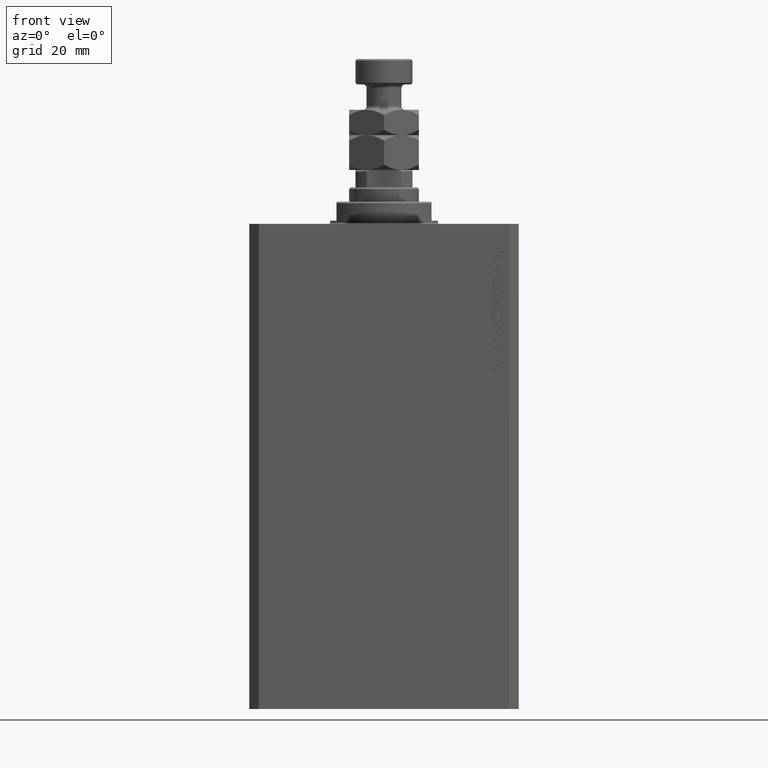
[diagram: clean part render]
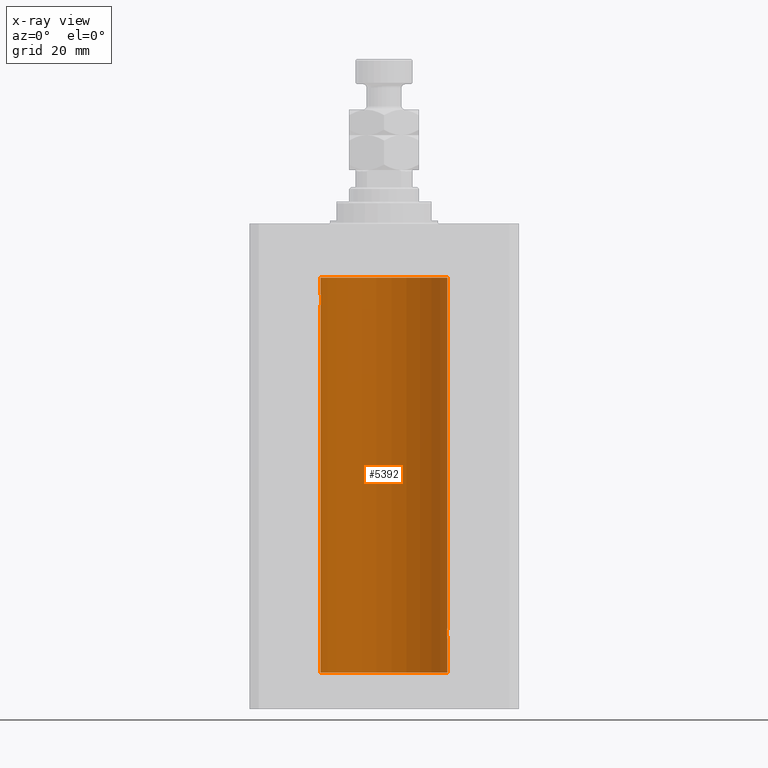
[diagram: x-ray — body ghosted, one internal face saturated and labeled with its STEP entity id]
A machine part, front view, then the same camera in x-ray: the body is ghosted and one INTERNAL B-rep face — a face not visible from any outside direction — is saturated and labeled: STEP entity #5392.
In plain terms, the highlighted cylindrical surface (partial cylindrical patch) has radius 20 mm, axis along (0, 0, 1).
Its self-contained STEP definition (entity closure, byte-faithful):
#587 = DIRECTION ( 'NONE',  ( 1.000000000000000000, 0.000000000000000000, 0.000000000000000000 ) ) ;
#715 = DIRECTION ( 'NONE',  ( -0.000000000000000000, -0.000000000000000000, 1.000000000000000000 ) ) ;
#732 = CARTESIAN_POINT ( 'NONE',  ( -19.90978941500366872, 1.898109641280506521, -24.64371130639850804 ) ) ;
#946 = EDGE_CURVE ( 'NONE', #2558, #45193, #37895, .T. ) ;
#1193 = CARTESIAN_POINT ( 'NONE',  ( -19.94330239452387232, 1.507796451871729504, -25.32060165083834136 ) ) ;
#1369 = EDGE_CURVE ( 'NONE', #14040, #21092, #17771, .T. ) ;
#1472 = CARTESIAN_POINT ( 'NONE',  ( 20.00000000000000000, 0.000000000000000000, -17.00000000000000000 ) ) ;
#1886 = CARTESIAN_POINT ( 'NONE',  ( 19.99867993937906974, 0.2631387813862820502, -127.0130809500309113 ) ) ;
#1988 = CARTESIAN_POINT ( 'NONE',  ( 19.98066923111604964, 0.8874387315505276597, -130.7971214522023899 ) ) ;
#2111 = CARTESIAN_POINT ( 'NONE',  ( 20.00000000000000000, -1.553109350199128042E-23, -127.0000000000000000 ) ) ;
#2442 = CARTESIAN_POINT ( 'NONE',  ( 20.00000000000000000, 3.320656427414327395E-15, -131.0000000000000000 ) ) ;
#2558 = VERTEX_POINT ( 'NONE', #25260 ) ;
#2675 = CARTESIAN_POINT ( 'NONE',  ( 19.89974874213235623, 2.000000000000336176, -129.2611413215582559 ) ) ;
#2776 = CARTESIAN_POINT ( 'NONE',  ( -20.00000000000000000, 2.449293598294706513E-15, -141.5999999999999943 ) ) ;
#3194 = CIRCLE ( 'NONE', #8437, 20.00000000000000000 ) ;
#4113 = AXIS2_PLACEMENT_3D ( 'NONE', #24889, #43577, #21378 ) ;
#4255 = CARTESIAN_POINT ( 'NONE',  ( -19.99999999999999645, 0.1322335637814733289, -21.99999999999999645 ) ) ;
#4405 = LINE ( 'NONE', #32701, #7826 ) ;
#4476 = CARTESIAN_POINT ( 'NONE',  ( -19.90610216711450420, 1.935912154109700190, -24.51899474186111050 ) ) ;
#4562 = DIRECTION ( 'NONE',  ( 0.000000000000000000, 0.000000000000000000, 1.000000000000000000 ) ) ;
#4938 = CARTESIAN_POINT ( 'NONE',  ( -19.89974399317116394, 2.000047251570890250, -24.12981181290706445 ) ) ;
#5376 = ORIENTED_EDGE ( 'NONE', *, *, #5695, .T. ) ;
#5392 = ADVANCED_FACE ( 'NONE', ( #14363 ), #29318, .F. ) ;
#5407 = CARTESIAN_POINT ( 'NONE',  ( 19.90980722176544759, 1.897923463361385954, -128.3557453536680555 ) ) ;
#5573 = CARTESIAN_POINT ( 'NONE',  ( -20.00000000000000000, 2.449293598294706513E-15, -17.00000000000000000 ) ) ;
#5641 = CARTESIAN_POINT ( 'NONE',  ( 19.90611763847109117, 1.935753518394738526, -128.4804224343485259 ) ) ;
#5695 = EDGE_CURVE ( 'NONE', #14502, #14066, #4405, .T. ) ;
#6835 = VECTOR ( 'NONE', #715, 1000.000000000000000 ) ;
#6882 = CIRCLE ( 'NONE', #38982, 20.00000000000000000 ) ;
#6925 = ORIENTED_EDGE ( 'NONE', *, *, #26897, .F. ) ;
#7013 = ORIENTED_EDGE ( 'NONE', *, *, #1369, .T. ) ;
#7826 = VECTOR ( 'NONE', #40404, 1000.000000000000000 ) ;
#8437 = AXIS2_PLACEMENT_3D ( 'NONE', #23496, #37748, #27000 ) ;
#9085 = EDGE_CURVE ( 'NONE', #14066, #33893, #6882, .T. ) ;
#9699 = CARTESIAN_POINT ( 'NONE',  ( 19.92371056170336274, 1.748080295468904755, -130.0060386593724786 ) ) ;
#9922 = CARTESIAN_POINT ( 'NONE',  ( 19.99868904672146996, 0.2623009746877889015, -130.9870089850981287 ) ) ;
#9967 = LINE ( 'NONE', #31026, #37603 ) ;
#10158 = CARTESIAN_POINT ( 'NONE',  ( 19.97516523393782606, 1.002309963754522304, -130.7356447155610795 ) ) ;
#10233 = CARTESIAN_POINT ( 'NONE',  ( 19.97511131722831479, 1.003336743019917598, -127.2649856517438991 ) ) ;
#11725 = CARTESIAN_POINT ( 'NONE',  ( -19.98070694681040038, 0.8865903856744316025, -25.79753901127162763 ) ) ;
#11892 = CARTESIAN_POINT ( 'NONE',  ( 19.89974874213236333, 2.000000000000336620, -129.0000000000000000 ) ) ;
#11941 = CARTESIAN_POINT ( 'NONE',  ( -19.91909332229799290, 1.797847595792767317, -24.88596189455837759 ) ) ;
#12165 = CARTESIAN_POINT ( 'NONE',  ( -19.93679350243183990, 1.590453176650918676, -25.21960275349743696 ) ) ;
#12418 = CARTESIAN_POINT ( 'NONE',  ( 19.94332236886613074, 1.507531922383783307, -127.6790994990407455 ) ) ;
#12647 = CARTESIAN_POINT ( 'NONE',  ( 19.92473605353365684, 1.734984354167250942, -127.9966090588858805 ) ) ;
#12885 = ORIENTED_EDGE ( 'NONE', *, *, #9085, .T. ) ;
#14040 = VERTEX_POINT ( 'NONE', #22998 ) ;
#14066 = VERTEX_POINT ( 'NONE', #1472 ) ;
#14363 = FACE_OUTER_BOUND ( 'NONE', #44334, .T. ) ;
#14502 = VERTEX_POINT ( 'NONE', #2111 ) ;
#15973 = CARTESIAN_POINT ( 'NONE',  ( -20.00000000000000000, 2.449293598294706513E-15, -141.5999999999999943 ) ) ;
#16144 = ORIENTED_EDGE ( 'NONE', *, *, #36285, .T. ) ;
#16272 = CARTESIAN_POINT ( 'NONE',  ( 19.90520750556430229, 1.947496194184496376, -129.5245541699345040 ) ) ;
#16502 = CARTESIAN_POINT ( 'NONE',  ( 20.00000000000000000, 0.1322642052205942331, -131.0000000000000284 ) ) ;
#17771 = B_SPLINE_CURVE_WITH_KNOTS ( 'NONE', 3,
 ( #22264, #4255, #25776, #29955, #26222, #22713, #36510, #40476, #44212, #43762, #40026, #29276, #36287, #4938, #39786, #4476, #732, #11941, #43299, #12165, #1193, #22942, #26453, #18748, #11725, #18977, #29042, #29731, #40251, #37196 ),
 .UNSPECIFIED., .F., .F.,
 ( 4, 2, 2, 2, 2, 2, 2, 2, 2, 2, 2, 2, 2, 2, 4 ),
 ( 1.233811249882840126E-19, 0.0003910512220831129202, 0.0007821024441662257319, 0.001173153666249338381, 0.001564204888332450813, 0.002346307332498675461, 0.003128409776664900326, 0.003519460998748018179, 0.003910512220831135165, 0.004301563442914253452, 0.004692614664997370871, 0.005083665887080488291, 0.005474717109163606578, 0.005865768331246723997, 0.006256819553329842284 ),
 .UNSPECIFIED. ) ;
#17903 = CARTESIAN_POINT ( 'NONE',  ( 0.000000000000000000, 0.000000000000000000, -17.00000000000000000 ) ) ;
#18748 = CARTESIAN_POINT ( 'NONE',  ( -19.97510079925438475, 1.003547732426807171, -25.73489454601984150 ) ) ;
#18977 = CARTESIAN_POINT ( 'NONE',  ( -19.98998539619404013, 0.6443418861413118259, -25.89789687358865322 ) ) ;
#19451 = CARTESIAN_POINT ( 'NONE',  ( 19.89974874213236333, 2.000000000000336620, -129.0000000000000000 ) ) ;
#19681 = CARTESIAN_POINT ( 'NONE',  ( 19.98998987637478209, 0.6441982143731834753, -127.1020565463988277 ) ) ;
#19913 = CARTESIAN_POINT ( 'NONE',  ( 19.95655800881796083, 1.320814917468104310, -127.4923930935969167 ) ) ;
#20103 = LINE ( 'NONE', #2776, #33864 ) ;
#20239 = CARTESIAN_POINT ( 'NONE',  ( 19.95643710845398644, 1.322557776536536611, -130.5059384114668433 ) ) ;
#21092 = VERTEX_POINT ( 'NONE', #42873 ) ;
#21378 = DIRECTION ( 'NONE',  ( 1.000000000000000000, 0.000000000000000000, 0.000000000000000000 ) ) ;
#22016 = LINE ( 'NONE', #36268, #6835 ) ;
#22264 = CARTESIAN_POINT ( 'NONE',  ( -20.00000000000000000, -1.269718202421245235E-16, -22.00000000000000000 ) ) ;
#22562 = EDGE_CURVE ( 'NONE', #45193, #14502, #22965, .T. ) ;
#22713 = CARTESIAN_POINT ( 'NONE',  ( -19.98067755938510714, 0.8872481584516758168, -22.20278656943303375 ) ) ;
#22942 = CARTESIAN_POINT ( 'NONE',  ( -19.95654117037011588, 1.321069663197671273, -25.50738641543989615 ) ) ;
#22952 = CARTESIAN_POINT ( 'NONE',  ( 19.93681418096177538, 1.590194273034195804, -127.7800630082155635 ) ) ;
#22965 = B_SPLINE_CURVE_WITH_KNOTS ( 'NONE', 3,
 ( #19451, #24501, #30660, #5641, #5407, #23419, #12647, #22952, #12418, #19913, #37673, #10233, #44454, #19681, #33932, #1886, #30434, #37206 ),
 .UNSPECIFIED., .F., .F.,
 ( 4, 2, 2, 2, 2, 2, 2, 2, 4 ),
 ( 0.003129134698348759458, 0.003520095305221480463, 0.003911055912094200601, 0.004302016518966922040, 0.004692977125839642612, 0.005083937732712363183, 0.005474898339585083755, 0.005865858946457805194, 0.006256819553330525766 ),
 .UNSPECIFIED. ) ;
#22998 = CARTESIAN_POINT ( 'NONE',  ( -20.00000000000000000, -1.269718202421245235E-16, -22.00000000000000000 ) ) ;
#23419 = CARTESIAN_POINT ( 'NONE',  ( 19.91911433329476822, 1.797615436563599900, -128.1135710607577494 ) ) ;
#23496 = CARTESIAN_POINT ( 'NONE',  ( 0.000000000000000000, 0.000000000000000000, -141.5999999999999943 ) ) ;
#24501 = CARTESIAN_POINT ( 'NONE',  ( 19.89974874213236333, 2.000000000000337064, -128.8694898374175466 ) ) ;
#24889 = CARTESIAN_POINT ( 'NONE',  ( 0.000000000000000000, 0.000000000000000000, -141.5999999999999943 ) ) ;
#25260 = CARTESIAN_POINT ( 'NONE',  ( 20.00000000000000000, 3.320656427414327395E-15, -131.0000000000000000 ) ) ;
#25776 = CARTESIAN_POINT ( 'NONE',  ( -19.99868965376115071, 0.2622407139811102628, -22.01298505384673732 ) ) ;
#26222 = CARTESIAN_POINT ( 'NONE',  ( -19.98996196681220638, 0.6450624715427617506, -22.10234886833925572 ) ) ;
#26453 = CARTESIAN_POINT ( 'NONE',  ( -19.96304379627741454, 1.220099331833899736, -25.59007067689674386 ) ) ;
#26897 = EDGE_CURVE ( 'NONE', #14040, #33893, #22016, .T. ) ;
#27000 = DIRECTION ( 'NONE',  ( 1.000000000000000000, 0.000000000000000000, 0.000000000000000000 ) ) ;
#27122 = DIRECTION ( 'NONE',  ( -0.000000000000000000, -0.000000000000000000, 1.000000000000000000 ) ) ;
#27987 = DIRECTION ( 'NONE',  ( -0.000000000000000000, -0.000000000000000000, 1.000000000000000000 ) ) ;
#29042 = CARTESIAN_POINT ( 'NONE',  ( -19.99365919015135518, 0.5196544277756711683, -25.93573148867292133 ) ) ;
#29276 = CARTESIAN_POINT ( 'NONE',  ( -19.90522393307484705, 1.947330458682957177, -23.47486091545001941 ) ) ;
#29318 = CYLINDRICAL_SURFACE ( 'NONE', #4113, 20.00000000000000000 ) ;
#29731 = CARTESIAN_POINT ( 'NONE',  ( -19.99867931558985745, 0.2631998640366461362, -25.98691292011447374 ) ) ;
#29955 = CARTESIAN_POINT ( 'NONE',  ( -19.99370013622814568, 0.5179893069484621249, -22.06384771616670903 ) ) ;
#30434 = CARTESIAN_POINT ( 'NONE',  ( 20.00000000000000000, 0.1305404422160244271, -126.9999999999999147 ) ) ;
#30660 = CARTESIAN_POINT ( 'NONE',  ( 19.90107458412649066, 1.986930174329753385, -128.7369201394178901 ) ) ;
#30675 = EDGE_CURVE ( 'NONE', #37925, #31942, #3194, .T. ) ;
#30901 = EDGE_CURVE ( 'NONE', #31942, #21092, #20103, .T. ) ;
#30985 = CARTESIAN_POINT ( 'NONE',  ( 19.93682487288204541, 1.599118048130810488, -130.2291703518122574 ) ) ;
#31026 = CARTESIAN_POINT ( 'NONE',  ( 20.00000000000000000, 0.000000000000000000, -141.5999999999999943 ) ) ;
#31853 = ORIENTED_EDGE ( 'NONE', *, *, #30675, .F. ) ;
#31942 = VERTEX_POINT ( 'NONE', #15973 ) ;
#32701 = CARTESIAN_POINT ( 'NONE',  ( 20.00000000000000000, 0.000000000000000000, -141.5999999999999943 ) ) ;
#32895 = CARTESIAN_POINT ( 'NONE',  ( 20.00000000000000000, 0.000000000000000000, -141.5999999999999943 ) ) ;
#33864 = VECTOR ( 'NONE', #27122, 1000.000000000000000 ) ;
#33893 = VERTEX_POINT ( 'NONE', #5573 ) ;
#33932 = CARTESIAN_POINT ( 'NONE',  ( 19.99366205580918532, 0.5195372307044506810, -127.0642390655580556 ) ) ;
#36268 = CARTESIAN_POINT ( 'NONE',  ( -20.00000000000000000, 2.449293598294706513E-15, -141.5999999999999943 ) ) ;
#36285 = EDGE_CURVE ( 'NONE', #37925, #2558, #9967, .T. ) ;
#36287 = CARTESIAN_POINT ( 'NONE',  ( -19.89975827978156175, 1.999905101582726719, -23.73819846102561115 ) ) ;
#36510 = CARTESIAN_POINT ( 'NONE',  ( -19.97517568592526160, 1.002099838626314909, -22.26423634872104884 ) ) ;
#37196 = CARTESIAN_POINT ( 'NONE',  ( -20.00000000000000000, 2.449293582768784389E-15, -25.99999999999999645 ) ) ;
#37206 = CARTESIAN_POINT ( 'NONE',  ( 20.00000000000000000, -1.553109350199128042E-23, -127.0000000000000000 ) ) ;
#37603 = VECTOR ( 'NONE', #27987, 1000.000000000000000 ) ;
#37673 = CARTESIAN_POINT ( 'NONE',  ( 19.96305842179987877, 1.219858681717336024, -127.4097471253956257 ) ) ;
#37748 = DIRECTION ( 'NONE',  ( 0.000000000000000000, 0.000000000000000000, 1.000000000000000000 ) ) ;
#37895 = B_SPLINE_CURVE_WITH_KNOTS ( 'NONE', 3,
 ( #2442, #16502, #9922, #37994, #45241, #1988, #10158, #45705, #20239, #30985, #9699, #16272, #2675, #41739 ),
 .UNSPECIFIED., .F., .F.,
 ( 4, 2, 2, 2, 2, 2, 4 ),
 ( 3.226750037391780216E-18, 0.0003911418372935829518, 0.0007822836745871626510, 0.001173425511880742513, 0.001564567349174322049, 0.002346851023761540537, 0.003129134698348759458 ),
 .UNSPECIFIED. ) ;
#37925 = VERTEX_POINT ( 'NONE', #32895 ) ;
#37994 = CARTESIAN_POINT ( 'NONE',  ( 19.99369727434158506, 0.5181068333511547053, -130.9361228828299772 ) ) ;
#38356 = ORIENTED_EDGE ( 'NONE', *, *, #946, .T. ) ;
#38982 = AXIS2_PLACEMENT_3D ( 'NONE', #17903, #4562, #587 ) ;
#39483 = ORIENTED_EDGE ( 'NONE', *, *, #30901, .F. ) ;
#39786 = CARTESIAN_POINT ( 'NONE',  ( -19.90106552791689154, 1.987020435121076734, -24.26241417820002155 ) ) ;
#40026 = CARTESIAN_POINT ( 'NONE',  ( -19.92373272380676497, 1.747830109444745927, -22.99354240926169624 ) ) ;
#40251 = CARTESIAN_POINT ( 'NONE',  ( -19.99999999999999645, 0.1305706983324449733, -25.99999999999998934 ) ) ;
#40404 = DIRECTION ( 'NONE',  ( -0.000000000000000000, -0.000000000000000000, 1.000000000000000000 ) ) ;
#40476 = CARTESIAN_POINT ( 'NONE',  ( -19.96308513509966787, 1.219458756546270672, -22.40940266542446935 ) ) ;
#41739 = CARTESIAN_POINT ( 'NONE',  ( 19.89974874213236333, 2.000000000000336620, -129.0000000000000000 ) ) ;
#42873 = CARTESIAN_POINT ( 'NONE',  ( -20.00000000000000000, 2.449293582768784389E-15, -25.99999999999999645 ) ) ;
#43299 = CARTESIAN_POINT ( 'NONE',  ( -19.92471474456649716, 1.735228749583835439, -25.00297226784954674 ) ) ;
#43577 = DIRECTION ( 'NONE',  ( -0.000000000000000000, -0.000000000000000000, 1.000000000000000000 ) ) ;
#43762 = CARTESIAN_POINT ( 'NONE',  ( -19.93684595445884611, 1.598854313793185655, -22.77049887769366521 ) ) ;
#44212 = CARTESIAN_POINT ( 'NONE',  ( -19.95645382900617903, 1.322305185229311064, -22.49384229619286657 ) ) ;
#44334 = EDGE_LOOP ( 'NONE', ( #39483, #31853, #16144, #38356, #45371, #5376, #12885, #6925, #7013 ) ) ;
#44454 = CARTESIAN_POINT ( 'NONE',  ( 19.98071536551673688, 0.8863972468204340815, -127.2023680539948174 ) ) ;
#45193 = VERTEX_POINT ( 'NONE', #11892 ) ;
#45241 = CARTESIAN_POINT ( 'NONE',  ( 19.98995738555794688, 0.6452086089795098234, -130.8976034536015618 ) ) ;
#45371 = ORIENTED_EDGE ( 'NONE', *, *, #22562, .T. ) ;
#45705 = CARTESIAN_POINT ( 'NONE',  ( 19.96307037068151402, 1.219701915132741732, -130.5904134935036609 ) ) ;